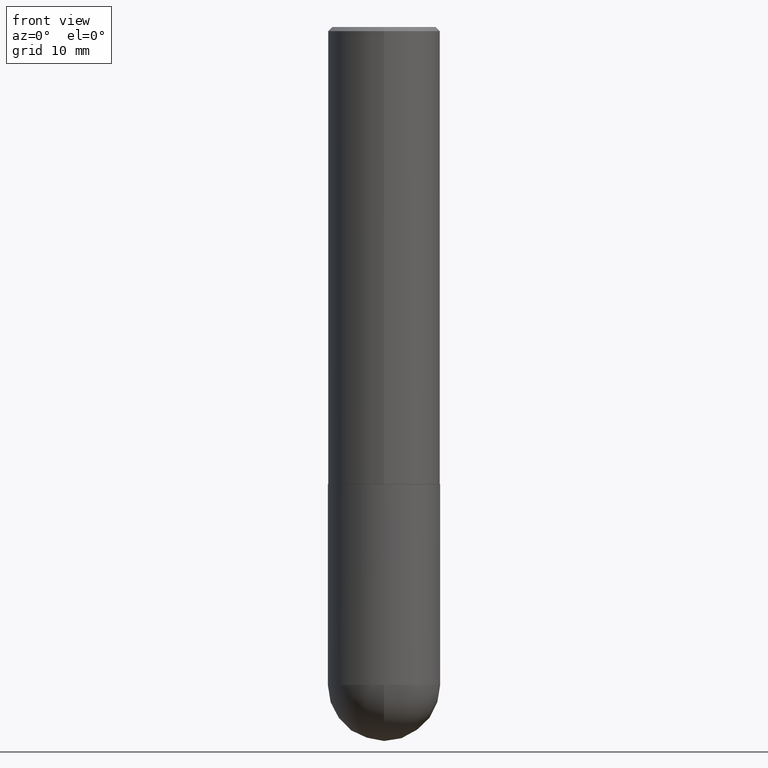
[diagram: clean part render]
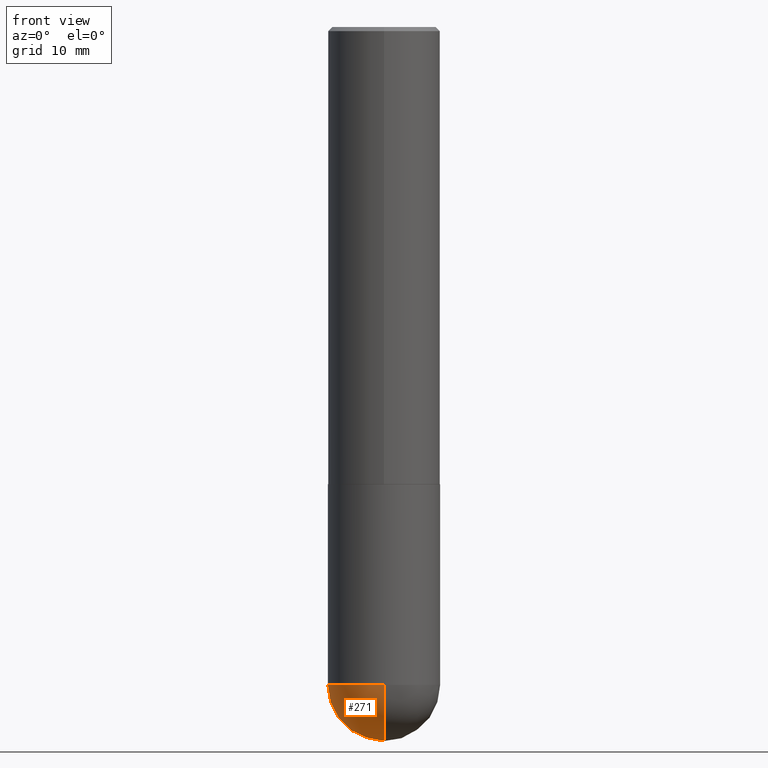
[diagram: same view with one face highlighted and labeled with its STEP entity id]
A machine part, front view. The second image highlights one B-rep face of the part: STEP entity #271.
In plain terms, the highlighted spherical surface has radius 7.0002 mm.
Its self-contained STEP definition (entity closure, byte-faithful):
#2 = CIRCLE ( 'NONE', #48, 0.2756000000000003447 ) ;
#4 = DIRECTION ( 'NONE',  ( 1.000000000000000000, -6.982962677686264344E-15, 0.000000000000000000 ) ) ;
#8 = DIRECTION ( 'NONE',  ( -2.445468806185136597E-29, 3.491481338843145583E-15, 1.000000000000000000 ) ) ;
#12 = EDGE_CURVE ( 'NONE', #374, #252, #184, .T. ) ;
#20 = CIRCLE ( 'NONE', #304, 0.2756000000000000671 ) ;
#23 = ORIENTED_EDGE ( 'NONE', *, *, #162, .F. ) ;
#28 = AXIS2_PLACEMENT_3D ( 'NONE', #217, #343, #189 ) ;
#34 = SPHERICAL_SURFACE ( 'NONE', #28, 0.2756000000000003447 ) ;
#37 = CARTESIAN_POINT ( 'NONE',  ( 1.924504513970413840E-15, 0.2755999999999887429, -3.228300000000000836 ) ) ;
#40 = CARTESIAN_POINT ( 'NONE',  ( 7.563587169093589749E-29, -1.174573157432737594E-14, -3.228299999999999503 ) ) ;
#48 = AXIS2_PLACEMENT_3D ( 'NONE', #40, #285, #225 ) ;
#62 = ORIENTED_EDGE ( 'NONE', *, *, #12, .F. ) ;
#81 = CARTESIAN_POINT ( 'NONE',  ( -0.2756000000000000671, -7.595135459587778194E-15, -3.228299999999999503 ) ) ;
#85 = EDGE_CURVE ( 'NONE', #317, #252, #232, .T. ) ;
#117 = EDGE_CURVE ( 'NONE', #259, #374, #20, .T. ) ;
#144 = AXIS2_PLACEMENT_3D ( 'NONE', #289, #192, #412 ) ;
#149 = AXIS2_PLACEMENT_3D ( 'NONE', #358, #203, #268 ) ;
#162 = EDGE_CURVE ( 'NONE', #317, #259, #2, .T. ) ;
#184 = CIRCLE ( 'NONE', #144, 0.2756000000000000671 ) ;
#189 = DIRECTION ( 'NONE',  ( 6.982962677686265922E-15, 1.000000000000000000, -3.964946289788475374E-15 ) ) ;
#192 = DIRECTION ( 'NONE',  ( -2.445468806185136597E-29, 3.491481338843145583E-15, 1.000000000000000000 ) ) ;
#199 = FACE_OUTER_BOUND ( 'NONE', #312, .T. ) ;
#202 = CARTESIAN_POINT ( 'NONE',  ( 8.249342563543106087E-29, -1.269110819842029813E-14, -3.503899999999999793 ) ) ;
#203 = DIRECTION ( 'NONE',  ( -1.000000000000000000, 7.105427357601001070E-15, -4.926315508542082329E-29 ) ) ;
#210 = ORIENTED_EDGE ( 'NONE', *, *, #85, .T. ) ;
#217 = CARTESIAN_POINT ( 'NONE',  ( 7.563587169093589749E-29, -1.174573157432737594E-14, -3.228299999999999503 ) ) ;
#225 = DIRECTION ( 'NONE',  ( 6.982962677686265922E-15, 1.000000000000000000, 0.000000000000000000 ) ) ;
#232 = CIRCLE ( 'NONE', #149, 0.2756000000000003447 ) ;
#252 = VERTEX_POINT ( 'NONE', #354 ) ;
#259 = VERTEX_POINT ( 'NONE', #37 ) ;
#268 = DIRECTION ( 'NONE',  ( -7.105427357601001859E-15, -1.000000000000000000, 0.000000000000000000 ) ) ;
#270 = CARTESIAN_POINT ( 'NONE',  ( 7.894706947007475996E-29, -1.127154920618732565E-14, -3.228299999999999503 ) ) ;
#271 = ADVANCED_FACE ( 'NONE', ( #199 ), #34, .T. ) ;
#285 = DIRECTION ( 'NONE',  ( 1.000000000000000000, -6.982962677686265922E-15, 4.883557194083112340E-29 ) ) ;
#289 = CARTESIAN_POINT ( 'NONE',  ( 7.894706947007475996E-29, -1.127154920618732565E-14, -3.228299999999999503 ) ) ;
#304 = AXIS2_PLACEMENT_3D ( 'NONE', #270, #8, #4 ) ;
#312 = EDGE_LOOP ( 'NONE', ( #23, #210, #62, #353 ) ) ;
#317 = VERTEX_POINT ( 'NONE', #202 ) ;
#343 = DIRECTION ( 'NONE',  ( -1.000000000000000000, 6.982962677686265922E-15, -4.883557194083112340E-29 ) ) ;
#353 = ORIENTED_EDGE ( 'NONE', *, *, #117, .F. ) ;
#354 = CARTESIAN_POINT ( 'NONE',  ( -1.958255779754759675E-15, -0.2756000000000117245, -3.228299999999998615 ) ) ;
#358 = CARTESIAN_POINT ( 'NONE',  ( 7.563587169093589749E-29, -1.174573157432737594E-14, -3.228299999999999503 ) ) ;
#374 = VERTEX_POINT ( 'NONE', #81 ) ;
#412 = DIRECTION ( 'NONE',  ( 1.000000000000000000, -6.982962677686264344E-15, 0.000000000000000000 ) ) ;